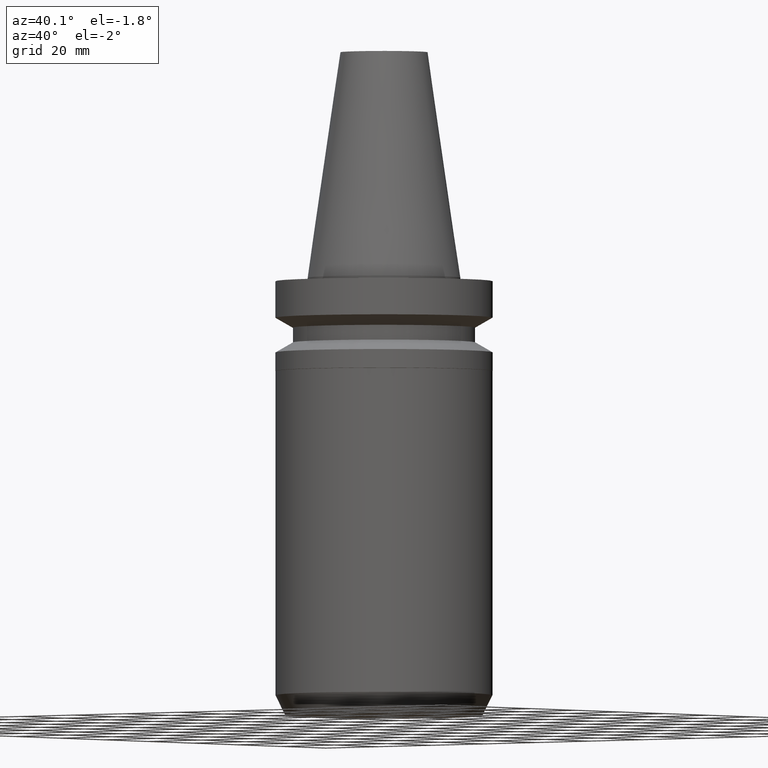
[diagram: clean part render]
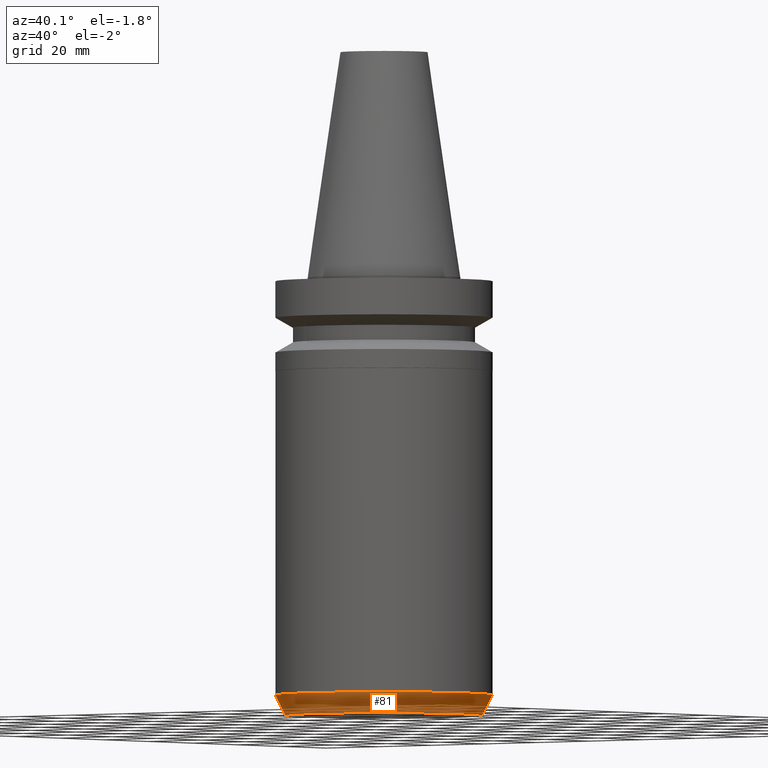
[diagram: same view with one face highlighted and labeled with its STEP entity id]
A machine part, auxiliary view. The second image highlights one B-rep face of the part: STEP entity #81.
In plain terms, the highlighted conical surface has half-angle 25 deg.
Its self-contained STEP definition (entity closure, byte-faithful):
#66=EDGE_CURVE('Unnamed[1]',#158,#158,#159,.T.);
#72=EDGE_CURVE('Unnamed[1]',#167,#167,#168,.T.);
#81=ADVANCED_FACE('Unnamed[1]',(#179,#180),#181,.T.);
#158=VERTEX_POINT('',#273);
#159=CIRCLE('',#274,31.4500000000001);
#167=VERTEX_POINT('',#285);
#168=CIRCLE('',#286,28.6735846392919);
#179=FACE_BOUND('',#299,.T.);
#180=FACE_BOUND('',#300,.T.);
#181=CONICAL_SURFACE('',#301,30.061792319646,0.436332312998583);
#273=CARTESIAN_POINT('',(7.41192725346147E-015,31.4500000000001,-121.045958044751));
#274=AXIS2_PLACEMENT_3D('',#397,#398,#399);
#285=CARTESIAN_POINT('',(7.77650717458563E-015,28.6735846392919,-126.999999999999));
#286=AXIS2_PLACEMENT_3D('',#406,#407,#408);
#299=EDGE_LOOP('',(#417));
#300=EDGE_LOOP('',(#418));
#301=AXIS2_PLACEMENT_3D('',#419,#420,#421);
#397=CARTESIAN_POINT('',(7.41192725346147E-015,1.78586184716271E-014,-121.045958044751));
#398=DIRECTION('',(6.12323399573677E-017,-3.16409739642802E-016,-1.0));
#399=DIRECTION('',(1.45473560128628E-032,1.0,-3.16409739642802E-016));
#406=CARTESIAN_POINT('',(7.77650717458563E-015,1.59747016067449E-014,-126.999999999999));
#407=DIRECTION('',(6.12323399573677E-017,-3.1640973964281E-016,-1.0));
#408=DIRECTION('',(1.45473560128616E-032,1.0,-3.1640973964281E-016));
#417=ORIENTED_EDGE('',*,*,#72,.F.);
#418=ORIENTED_EDGE('',*,*,#66,.T.);
#419=CARTESIAN_POINT('',(7.59421721402355E-015,1.6916660039186E-014,-124.022979022375));
#420=DIRECTION('',(-6.12323399573677E-017,3.16409739642806E-016,1.0));
#421=DIRECTION('',(1.45473560128578E-032,1.0,-3.16409739642806E-016));